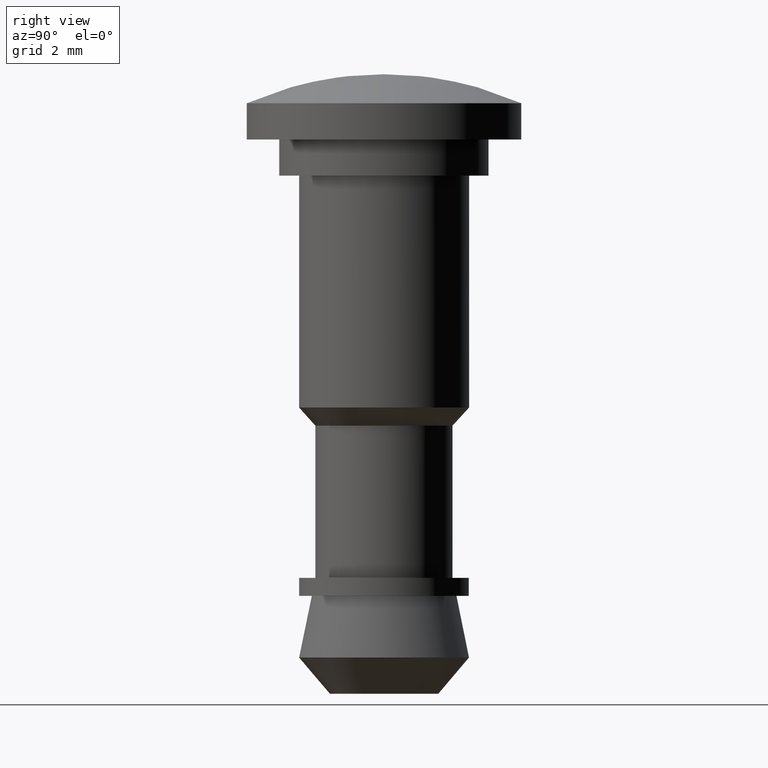
[diagram: clean part render]
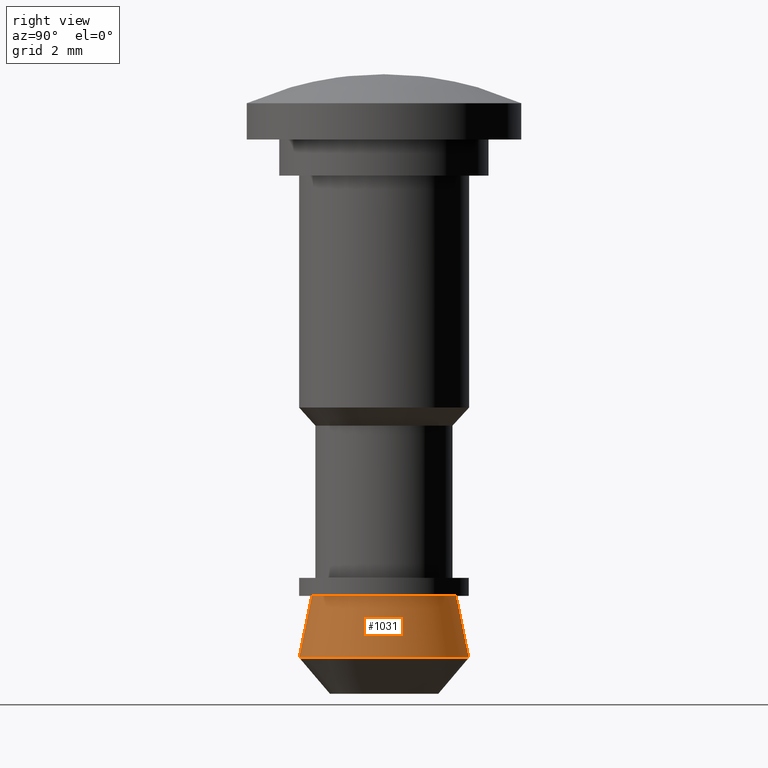
[diagram: same view with one face highlighted and labeled with its STEP entity id]
A machine part, right view. The second image highlights one B-rep face of the part: STEP entity #1031.
In plain terms, the highlighted face is a freeform B-spline surface patch.
Its self-contained STEP definition (entity closure, byte-faithful):
#922=CARTESIAN_POINT('',(0.227203004284345,1.978246015710512,-11.557502367688024));
#923=CARTESIAN_POINT('',(1.885626516785238,1.787774860240667,-11.557502367688022));
#924=CARTESIAN_POINT('',(1.987536403913509,0.121562934107822,-11.557502367688020));
#925=CARTESIAN_POINT('',(2.109099338021331,-1.865973469805687,-11.557502367688024));
#926=CARTESIAN_POINT('',(0.121562934107822,-1.987536403913509,-11.557502367688020));
#927=CARTESIAN_POINT('',(0.269157620662086,2.343542913748270,-13.343465365598886));
#928=CARTESIAN_POINT('',(2.233820579590918,2.117899933487050,-13.343465365598879));
#929=CARTESIAN_POINT('',(2.354548836806472,0.144010376131359,-13.343465365598879));
#930=CARTESIAN_POINT('',(2.498559212937830,-2.210538460675112,-13.343465365598881));
#931=CARTESIAN_POINT('',(0.144010376131359,-2.354548836806472,-13.343465365598879));
#939=(BOUNDED_SURFACE()B_SPLINE_SURFACE(2,1,((#922,#927),(#923,#928),(#924,#929),(#925,#930),(#926,#931)),.UNSPECIFIED.,.F.,.F.,.U.)B_SPLINE_SURFACE_WITH_KNOTS((3,2,3),(2,2),(0.0,3.439422152017935,7.347856415674679),(0.0,1.0),.UNSPECIFIED.)GEOMETRIC_REPRESENTATION_ITEM()RATIONAL_B_SPLINE_SURFACE(((0.938140952186599,0.938140952186599),(0.742253967444162,0.742253967444162),(1.0,1.0),(0.707106781186548,0.707106781186548),(1.0,1.0)))REPRESENTATION_ITEM('')SURFACE());
#940=CARTESIAN_POINT('',(0.268134337348762,2.334633233307251,-13.299905292481110));
#941=VERTEX_POINT('',#940);
#942=CARTESIAN_POINT('',(2.349980501392765,0.0,-13.299905292479099));
#943=VERTEX_POINT('',#942);
#944=CARTESIAN_POINT('',(0.268134337348762,2.334633233307251,-13.299905292481110));
#945=CARTESIAN_POINT('',(2.349980501392765,2.095531676059459,-13.299905292479099));
#946=CARTESIAN_POINT('',(2.349980501392765,0.0,-13.299905292479099));
#954=(BOUNDED_CURVE()B_SPLINE_CURVE(2,(#944,#945,#946),.UNSPECIFIED.,.F.,.U.)B_SPLINE_CURVE_WITH_KNOTS((3,3),(0.269767755878482,0.500000000000000),.UNSPECIFIED.)CURVE()GEOMETRIC_REPRESENTATION_ITEM()RATIONAL_B_SPLINE_CURVE((0.957343736456970,0.730266147778416,1.0))REPRESENTATION_ITEM(''));
#955=EDGE_CURVE('',#941,#943,#954,.T.);
#956=ORIENTED_EDGE('',*,*,#955,.F.);
#957=CARTESIAN_POINT('',(0.228201329490028,1.986938386870660,-11.600000000001440));
#958=VERTEX_POINT('',#957);
#959=CARTESIAN_POINT('',(0.228201329490028,1.986938386870660,-11.600000000001440));
#960=CARTESIAN_POINT('',(0.268134337348762,2.334633233307251,-13.299905292481110));
#961=QUASI_UNIFORM_CURVE('',1,(#959,#960),.UNSPECIFIED.,.F.,.U.);
#962=EDGE_CURVE('',#958,#941,#961,.T.);
#963=ORIENTED_EDGE('',*,*,#962,.F.);
#964=CARTESIAN_POINT('',(2.0,0.0,-11.600000000000000));
#965=VERTEX_POINT('',#964);
#966=CARTESIAN_POINT('',(0.228201329490028,1.986938386870660,-11.600000000001438));
#967=CARTESIAN_POINT('',(2.000000000000000,1.783446011421071,-11.600000000000001));
#968=CARTESIAN_POINT('',(2.0,0.0,-11.600000000000000));
#976=(BOUNDED_CURVE()B_SPLINE_CURVE(2,(#966,#967,#968),.UNSPECIFIED.,.F.,.U.)B_SPLINE_CURVE_WITH_KNOTS((3,3),(0.269767755878189,0.500000000000000),.UNSPECIFIED.)CURVE()GEOMETRIC_REPRESENTATION_ITEM()RATIONAL_B_SPLINE_CURVE((0.957343736457548,0.730266147778073,1.0))REPRESENTATION_ITEM(''));
#977=EDGE_CURVE('',#958,#965,#976,.T.);
#978=ORIENTED_EDGE('',*,*,#977,.T.);
#979=CARTESIAN_POINT('',(0.122095608575917,-1.996269529733982,-11.599999238618530));
#980=VERTEX_POINT('',#979);
#981=CARTESIAN_POINT('',(2.0,0.0,-11.600000000000000));
#982=CARTESIAN_POINT('',(2.000000000000000,-1.881413513253180,-11.600000000000003));
#983=CARTESIAN_POINT('',(0.122095608575917,-1.996269529733982,-11.599999238618523));
#991=(BOUNDED_CURVE()B_SPLINE_CURVE(2,(#981,#982,#983),.UNSPECIFIED.,.F.,.U.)B_SPLINE_CURVE_WITH_KNOTS((3,3),(0.500000000000000,0.739333088516402),.UNSPECIFIED.)CURVE()GEOMETRIC_REPRESENTATION_ITEM()RATIONAL_B_SPLINE_CURVE((1.0,0.719603845343464,0.976072312303500))REPRESENTATION_ITEM(''));
#992=EDGE_CURVE('',#965,#980,#991,.T.);
#993=ORIENTED_EDGE('',*,*,#992,.T.);
#994=CARTESIAN_POINT('',(0.143462662315270,-2.345597284441948,-13.299905085102059));
#995=VERTEX_POINT('',#994);
#996=CARTESIAN_POINT('',(0.122095608575917,-1.996269529733982,-11.599999238618530));
#997=CARTESIAN_POINT('',(0.143462662315270,-2.345597284441948,-13.299905085102059));
#998=QUASI_UNIFORM_CURVE('',1,(#996,#997),.UNSPECIFIED.,.F.,.U.);
#999=EDGE_CURVE('',#980,#995,#998,.T.);
#1000=ORIENTED_EDGE('',*,*,#999,.T.);
#1001=CARTESIAN_POINT('',(0.184377345131891,-2.342736295773937,-13.299905292476980));
#1002=VERTEX_POINT('',#1001);
#1003=CARTESIAN_POINT('',(0.184377345131891,-2.342736295773938,-13.299905292476977));
#1004=CARTESIAN_POINT('',(0.163932382829456,-2.344345349201589,-13.299905292479108));
#1005=CARTESIAN_POINT('',(0.143462662315270,-2.345597284441948,-13.299905085102056));
#1013=(BOUNDED_CURVE()B_SPLINE_CURVE(2,(#1003,#1004,#1005),.UNSPECIFIED.,.F.,.U.)B_SPLINE_CURVE_WITH_KNOTS((3,3),(0.736331300630658,0.739332993524006),.UNSPECIFIED.)CURVE()GEOMETRIC_REPRESENTATION_ITEM()RATIONAL_B_SPLINE_CURVE((0.969723356167415,0.972855508204704,0.976072108716572))REPRESENTATION_ITEM(''));
#1014=EDGE_CURVE('',#1002,#995,#1013,.T.);
#1015=ORIENTED_EDGE('',*,*,#1014,.F.);
#1016=CARTESIAN_POINT('',(2.349980501392765,0.0,-13.299905292479099));
#1017=CARTESIAN_POINT('',(2.349980501392764,-2.172299631042863,-13.299905292479099));
#1018=CARTESIAN_POINT('',(0.184377345131891,-2.342736295773938,-13.299905292476984));
#1026=(BOUNDED_CURVE()B_SPLINE_CURVE(2,(#1016,#1017,#1018),.UNSPECIFIED.,.F.,.U.)B_SPLINE_CURVE_WITH_KNOTS((3,3),(0.500000000000000,0.736331300630659),.UNSPECIFIED.)CURVE()GEOMETRIC_REPRESENTATION_ITEM()RATIONAL_B_SPLINE_CURVE((1.0,0.723120658607667,0.969723356167416))REPRESENTATION_ITEM(''));
#1027=EDGE_CURVE('',#943,#1002,#1026,.T.);
#1028=ORIENTED_EDGE('',*,*,#1027,.F.);
#1029=EDGE_LOOP('',(#956,#963,#978,#993,#1000,#1015,#1028));
#1030=FACE_OUTER_BOUND('',#1029,.T.);
#1031=ADVANCED_FACE('',(#1030),#939,.T.);